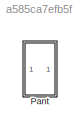
MODEL slx_a585ca7efb5f
KIND model
CONFIG AbsTol = auto
CONFIG FixedStep = auto
CONFIG MaxStep = auto
CONFIG MinStep = auto
CONFIG RelTol = 1e-3
CONFIG SampleTimeConstraint = Unconstrained
CONFIG Solver = VariableStepAuto
CONFIG SolverMode = SingleTasking
CONFIG SolverName = VariableStepAuto
CONFIG StartTime = 0.0
CONFIG StopTime = 10.0
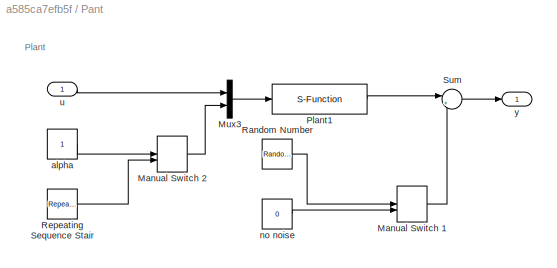
BLOCK [SubSystem] Pant 
  Ports = [1, 1]
  RequestExecContextInheritance = off
  Variant = off
BLOCK [ManualSwitch] Pant /Manual Switch 1
  CurrentSetting = 0
BLOCK [ManualSwitch] Pant /Manual Switch 2
BLOCK [Mux] Pant /Mux3
  DisplayOption = bar
  Inputs = 2
  Ports = [2, 1]
BLOCK [S-Function] Pant /Plant1
  EnableBusSupport = off
  FunctionName = LPV_Torsional
  Ports = [1, 1]
  SFunctionDeploymentMode = off
BLOCK [RandomNumber] Pant /Random Number
  SampleTime = Ts
  Variance = 0.00001
BLOCK [Reference] Pant /Repeating Sequence Stair  REF=simulink/Sources/Repeating
Sequence
Stair
  Ports = [0, 1]
  SourceBlock = simulink/Sources/Repeating\nSequence\nStair
  SourceType = Repeating Sequence Stair
BLOCK [Sum] Pant /Sum
  IconShape = round
  InputSameDT = off
  Inputs = |++
  OutDataTypeStr = Inherit: Inherit via internal rule
  Ports = [2, 1]
  SaturateOnIntegerOverflow = off
BLOCK [Constant] Pant /alpha
BLOCK [Constant] Pant /no noise 
  Value = 0
BLOCK [Inport] Pant /u
  IconDisplay = Port number
BLOCK [Outport] Pant /y 
  IconDisplay = Port number
ANNOTATION Pant : Plant
LINE Pant /Manual Switch 1:1 -> Pant /Sum:2
LINE Pant /Manual Switch 2:1 -> Pant /Mux3:2
LINE Pant /Mux3:1 -> Pant /Plant1:1
LINE Pant /Plant1:1 -> Pant /Sum:1
LINE Pant /Random Number:1 -> Pant /Manual Switch 1:1
LINE Pant /Repeating Sequence Stair:1 -> Pant /Manual Switch 2:2
LINE Pant /Sum:1 -> Pant /y :1
LINE Pant /alpha:1 -> Pant /Manual Switch 2:1
LINE Pant /no noise :1 -> Pant /Manual Switch 1:2
LINE Pant /u:1 -> Pant /Mux3:1
